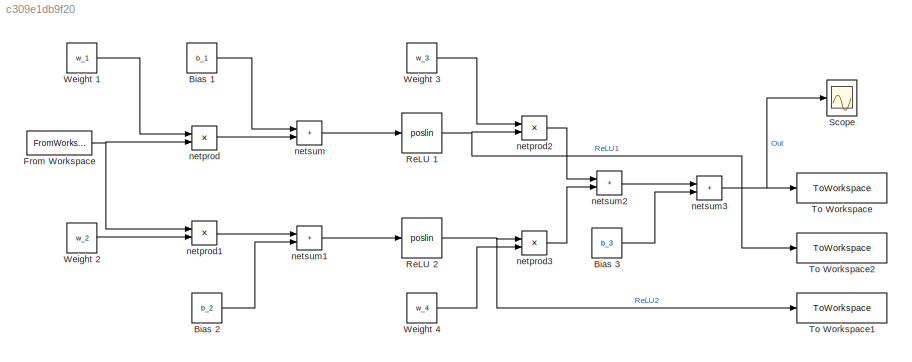
MODEL slx_c309e1db9f20
KIND model
CONFIG AbsTol = auto
CONFIG EnableMultiTasking = off
CONFIG FixedStep = auto
CONFIG MaxStep = auto
CONFIG MinStep = auto
CONFIG RelTol = 1e-3
CONFIG SampleTimeConstraint = Unconstrained
CONFIG SolverName = VariableStepAuto
CONFIG StartTime = 0.0
CONFIG StopTime = 1
BLOCK [Constant] Bias 1
  Value = b_1
BLOCK [Constant] Bias 2
  Value = b_2
BLOCK [Constant] Bias 3
  Value = b_3
BLOCK [FromWorkspace] From Workspace
  SampleTime = 1e-3
  VariableName = ts
BLOCK [Reference] ReLU 1  REF=neural/Transfer Functions/poslin
  Ports = [1, 1]
  SourceBlock = neural/Transfer Functions/poslin
  SourceProductBaseCode = NN
  SourceType = POSLIN
BLOCK [Reference] ReLU 2  REF=neural/Transfer Functions/poslin
  Ports = [1, 1]
  SourceBlock = neural/Transfer Functions/poslin
  SourceProductBaseCode = NN
  SourceType = POSLIN
BLOCK [Scope] Scope
  Floating = off
  NumInputPorts = 1
  Ports = [1]
  ScopeSpecificationString = Simulink.scopes.TimeScopeBlockCfg('CurrentConfiguration', extmgr.ConfigurationSet(extmgr.Configuration('Core','General UI',true),extmgr.Configuration('Core','Source UI',true),extmgr.Configuration('Sources','WiredSimulink',true),extmgr.Configuration('Visuals','Time Domain',true,'SerializedDisplays',{struct('MinYLimReal','-0.9024','MaxYLimReal','2.32163','YLabelReal','','MinYLimMag','0.00000','MaxYL...<+5422ch>
BLOCK [ToWorkspace] To Workspace
  FixptAsFi = on
  MaxDataPoints = inf
  Ports = [1]
  SampleTime = -1
  VariableName = simout
BLOCK [ToWorkspace] To Workspace1
  FixptAsFi = on
  MaxDataPoints = inf
  Ports = [1]
  SampleTime = -1
  VariableName = relu2
BLOCK [ToWorkspace] To Workspace2
  FixptAsFi = on
  MaxDataPoints = inf
  Ports = [1]
  SampleTime = -1
  VariableName = relu1
BLOCK [Constant] Weight 1
  Value = w_1
BLOCK [Constant] Weight 2
  Value = w_2
BLOCK [Constant] Weight 3
  Value = w_3
BLOCK [Constant] Weight 4
  Value = w_4
BLOCK [Product] netprod
  InputSameDT = on
  OutDataTypeStr = Inherit: Same as first input
  Ports = [2, 1]
  RndMeth = Zero
  SaturateOnIntegerOverflow = on
BLOCK [Product] netprod1
  InputSameDT = on
  OutDataTypeStr = Inherit: Same as first input
  Ports = [2, 1]
  RndMeth = Zero
  SaturateOnIntegerOverflow = on
BLOCK [Product] netprod2
  InputSameDT = on
  OutDataTypeStr = Inherit: Same as first input
  Ports = [2, 1]
  RndMeth = Zero
  SaturateOnIntegerOverflow = on
BLOCK [Product] netprod3
  InputSameDT = on
  OutDataTypeStr = Inherit: Same as first input
  Ports = [2, 1]
  RndMeth = Zero
  SaturateOnIntegerOverflow = on
BLOCK [Sum] netsum
  IconShape = rectangular
  InputSameDT = on
  Inputs = 2
  OutDataTypeStr = Inherit: Same as first input
  Ports = [2, 1]
  SaturateOnIntegerOverflow = on
BLOCK [Sum] netsum1
  IconShape = rectangular
  InputSameDT = on
  Inputs = 2
  OutDataTypeStr = Inherit: Same as first input
  Ports = [2, 1]
  SaturateOnIntegerOverflow = on
BLOCK [Sum] netsum2
  IconShape = rectangular
  InputSameDT = on
  Inputs = 2
  OutDataTypeStr = Inherit: Same as first input
  Ports = [2, 1]
  SaturateOnIntegerOverflow = on
BLOCK [Sum] netsum3
  IconShape = rectangular
  InputSameDT = on
  Inputs = 2
  OutDataTypeStr = Inherit: Same as first input
  Ports = [2, 1]
  SaturateOnIntegerOverflow = on
LINE Bias 1:1 -> netsum:1
LINE Bias 2:1 -> netsum1:2
LINE Bias 3:1 -> netsum3:2
NET From Workspace:1 -> netprod1:1, netprod:2
NET ReLU 1:1 -> To Workspace2:1, netprod2:2
NET ReLU 2:1 -> To Workspace1:1, netprod3:1
LINE Weight 1:1 -> netprod:1
LINE Weight 2:1 -> netprod1:2
LINE Weight 3:1 -> netprod2:1
LINE Weight 4:1 -> netprod3:2
LINE netprod1:1 -> netsum1:1
LINE netprod2:1 -> netsum2:1
LINE netprod3:1 -> netsum2:2
LINE netprod:1 -> netsum:2
LINE netsum1:1 -> ReLU 2:1
LINE netsum2:1 -> netsum3:1
NET netsum3:1 -> Scope:1, To Workspace:1
LINE netsum:1 -> ReLU 1:1
note: NET lines group one-source signal fan-out (src -> all destinations, sorted); 1:1 wires keep LINE
